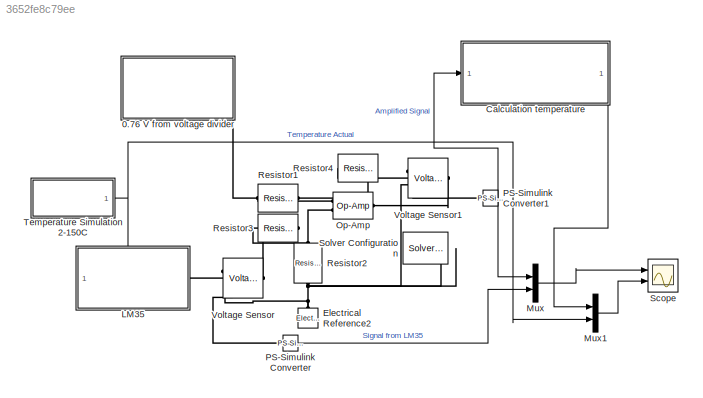
MODEL slx_3652fe8c79ee
KIND model
CONFIG AbsTol = auto
CONFIG EnableMultiTasking = off
CONFIG FixedStep = auto
CONFIG MaxStep = auto
CONFIG MinStep = auto
CONFIG RelTol = 1e-3
CONFIG SampleTimeConstraint = Unconstrained
CONFIG SolverName = VariableStepAuto
CONFIG StartTime = 0.0
CONFIG StopTime = 800
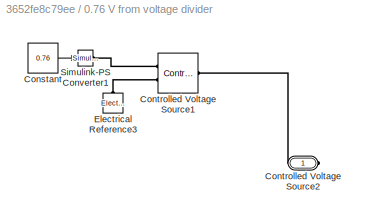
BLOCK [SubSystem] 0.76 V from voltage divider
  PortSchema = {"entries":[{"content":{"sides":[{"content":{"connectorIds":[]},"type":"ConnectorPlacement.EquallySpacedRectSide","uuid":"e1fed669-8d8a-41ed-8af4-1f1a704497c4"},{"content":{"connectorIds":[],"side":"RIGHT"},"type":"ConnectorPlacement.EquallySpacedRectSide","uuid":"b0ee4a10-4969-4a29-9254-be0943d7fc2a"},{"content":{"connectorIds":[],"side":"TOP"},"type":"ConnectorPlacement.EquallySpacedRectSide","u...<+525ch>
  Ports = [0, 0, 0, 0, 0, 0, 1]
  RequestExecContextInheritance = off
BLOCK [Constant] 0.76 V from voltage divider/Constant
  Value = 0.76
BLOCK [Reference] 0.76 V from voltage divider/Controlled Voltage Source1  REF=fl_lib/Electrical/Electrical Sources/Controlled Voltage
Source
  Ports = [0, 0, 0, 0, 0, 1, 2]
  SourceBlock = fl_lib/Electrical/Electrical Sources/Controlled Voltage\nSource
  SourceProductBaseCode = SS
  SourceType = Controlled Voltage\nSource
BLOCK [PMIOPort] 0.76 V from voltage divider/Controlled Voltage Source2
  Side = Right
BLOCK [Reference] 0.76 V from voltage divider/Electrical Reference3  REF=fl_lib/Electrical/Electrical Elements/Electrical Reference
  NameLocation = right
  Ports = [0, 0, 0, 0, 0, 1]
  SourceBlock = fl_lib/Electrical/Electrical Elements/Electrical Reference
  SourceProductBaseCode = SS
  SourceType = Electrical Reference
BLOCK [Reference] 0.76 V from voltage divider/Simulink-PS Converter1  REF=nesl_utility/Simulink-PS
Converter
  Ports = [1, 0, 0, 0, 0, 0, 1]
  SourceBlock = nesl_utility/Simulink-PS\nConverter
  SourceProductBaseCode = SS
  SourceType = Simulink-PS\nConverter
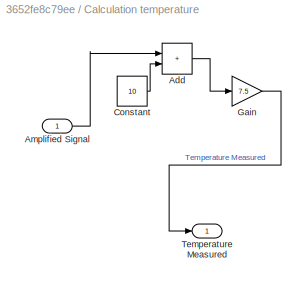
BLOCK [SubSystem] Calculation temperature
  Ports = [1, 1]
  RequestExecContextInheritance = off
BLOCK [Sum] Calculation temperature/Add
  IconShape = rectangular
  Ports = [2, 1]
BLOCK [Inport] Calculation temperature/Amplified Signal
BLOCK [Constant] Calculation temperature/Constant
  Value = 10
BLOCK [Gain] Calculation temperature/Gain
  Gain = 7.5
BLOCK [Outport] Calculation temperature/Temperature Measured
BLOCK [Reference] Electrical Reference2  REF=fl_lib/Electrical/Electrical Elements/Electrical Reference
  NameLocation = right
  Ports = [0, 0, 0, 0, 0, 1]
  SourceBlock = fl_lib/Electrical/Electrical Elements/Electrical Reference
  SourceProductBaseCode = SS
  SourceType = Electrical Reference
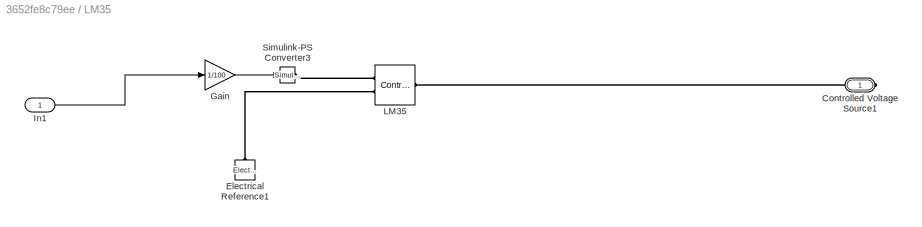
BLOCK [SubSystem] LM35
  PortSchema = {"entries":[{"content":{"sides":[{"content":{"connectorIds":[]},"type":"ConnectorPlacement.EquallySpacedRectSide","uuid":"3aaad436-2341-4e22-b71f-034393f9765e"},{"content":{"connectorIds":["RConn1"],"side":"RIGHT"},"type":"ConnectorPlacement.EquallySpacedRectSide","uuid":"800c2ee0-67ed-416a-922f-272a5a04867f"},{"content":{"connectorIds":["In1"],"side":"TOP"},"type":"ConnectorPlacement.EquallySpace...<+386ch>
  Ports = [1, 0, 0, 0, 0, 0, 1]
  RequestExecContextInheritance = off
BLOCK [PMIOPort] LM35/Controlled Voltage Source1
  Side = Right
BLOCK [Reference] LM35/Electrical Reference1  REF=fl_lib/Electrical/Electrical Elements/Electrical Reference
  NameLocation = right
  Ports = [0, 0, 0, 0, 0, 1]
  SourceBlock = fl_lib/Electrical/Electrical Elements/Electrical Reference
  SourceProductBaseCode = SS
  SourceType = Electrical Reference
BLOCK [Gain] LM35/Gain
  Gain = 1/100
BLOCK [Inport] LM35/In1
BLOCK [Reference] LM35/LM35  REF=fl_lib/Electrical/Electrical Sources/Controlled Voltage
Source
  Ports = [0, 0, 0, 0, 0, 1, 2]
  SourceBlock = fl_lib/Electrical/Electrical Sources/Controlled Voltage\nSource
  SourceProductBaseCode = SS
  SourceType = Controlled Voltage\nSource
BLOCK [Reference] LM35/Simulink-PS Converter3  REF=nesl_utility/Simulink-PS
Converter
  Ports = [1, 0, 0, 0, 0, 0, 1]
  SourceBlock = nesl_utility/Simulink-PS\nConverter
  SourceProductBaseCode = SS
  SourceType = Simulink-PS\nConverter
BLOCK [Mux] Mux
  DisplayOption = bar
  Inputs = 2
  Ports = [2, 1]
BLOCK [Mux] Mux1
  DisplayOption = bar
  Inputs = 2
  Ports = [2, 1]
BLOCK [Reference] Op-Amp  REF=fl_lib/Electrical/Electrical Elements/Op-Amp
  Ports = [0, 0, 0, 0, 0, 2, 1]
  SourceBlock = fl_lib/Electrical/Electrical Elements/Op-Amp
  SourceProductBaseCode = SS
  SourceType = Op-Amp
BLOCK [Reference] PS-Simulink Converter  REF=nesl_utility/PS-Simulink
Converter
  Ports = [0, 1, 0, 0, 0, 1]
  SourceBlock = nesl_utility/PS-Simulink\nConverter
  SourceProductBaseCode = SS
  SourceType = PS-Simulink\nConverter
BLOCK [Reference] PS-Simulink Converter1  REF=nesl_utility/PS-Simulink
Converter
  Ports = [0, 1, 0, 0, 0, 1]
  SourceBlock = nesl_utility/PS-Simulink\nConverter
  SourceProductBaseCode = SS
  SourceType = PS-Simulink\nConverter
BLOCK [Reference] Resistor1  REF=fl_lib/Electrical/Electrical Elements/Resistor
  NameLocation = top
  Ports = [0, 0, 0, 0, 0, 1, 1]
  SourceBlock = fl_lib/Electrical/Electrical Elements/Resistor
  SourceProductBaseCode = SS
  SourceType = Resistor
BLOCK [Reference] Resistor2  REF=fl_lib/Electrical/Electrical Elements/Resistor
  NameLocation = left
  Ports = [0, 0, 0, 0, 0, 1, 1]
  SourceBlock = fl_lib/Electrical/Electrical Elements/Resistor
  SourceProductBaseCode = SS
  SourceType = Resistor
BLOCK [Reference] Resistor3  REF=fl_lib/Electrical/Electrical Elements/Resistor
  NameLocation = top
  Ports = [0, 0, 0, 0, 0, 1, 1]
  SourceBlock = fl_lib/Electrical/Electrical Elements/Resistor
  SourceProductBaseCode = SS
  SourceType = Resistor
BLOCK [Reference] Resistor4  REF=fl_lib/Electrical/Electrical Elements/Resistor
  NameLocation = top
  Ports = [0, 0, 0, 0, 0, 1, 1]
  SourceBlock = fl_lib/Electrical/Electrical Elements/Resistor
  SourceProductBaseCode = SS
  SourceType = Resistor
BLOCK [Scope] Scope
  Floating = off
  NumInputPorts = 2
  Ports = [2]
  ScopeSpecificationString = Simulink.scopes.TimeScopeBlockCfg('CurrentConfiguration', extmgr.ConfigurationSet(extmgr.Configuration('Core','General UI',true),extmgr.Configuration('Core','Source UI',true),extmgr.Configuration('Sources','WiredSimulink',true),extmgr.Configuration('Visuals','Time Domain',true,'SerializedDisplays',{struct('MinYLimReal','-12.5787','MaxYLimReal','11.87495','YLabelReal','','MinYLimMag','0.00000','Max...<+2221ch>
BLOCK [Reference] Solver Configuration  REF=nesl_utility/Solver
Configuration
  Ports = [0, 0, 0, 0, 0, 0, 1]
  SourceBlock = nesl_utility/Solver\nConfiguration
  SourceProductBaseCode = SS
  SourceType = Solver\nConfiguration
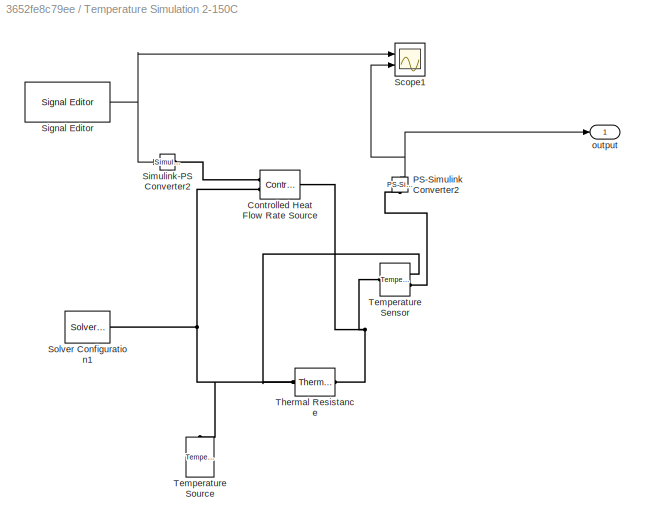
BLOCK [SubSystem] Temperature Simulation 2-150C
  Ports = [0, 1]
  RequestExecContextInheritance = off
BLOCK [Reference] Temperature Simulation 2-150C/Controlled Heat Flow Rate Source  REF=fl_lib/Thermal/Thermal Sources/Controlled Heat Flow
Rate Source
  Ports = [0, 0, 0, 0, 0, 1, 2]
  SourceBlock = fl_lib/Thermal/Thermal Sources/Controlled Heat Flow\nRate Source
  SourceProductBaseCode = SS
  SourceType = Controlled Heat Flow\nRate Source
BLOCK [Reference] Temperature Simulation 2-150C/PS-Simulink Converter2  REF=nesl_utility/PS-Simulink
Converter
  NameLocation = right
  Ports = [0, 1, 0, 0, 0, 1]
  SourceBlock = nesl_utility/PS-Simulink\nConverter
  SourceProductBaseCode = SS
  SourceType = PS-Simulink\nConverter
BLOCK [Scope] Temperature Simulation 2-150C/Scope1
  Floating = off
  NumInputPorts = 2
  Ports = [2]
  ScopeSpecificationString = Simulink.scopes.TimeScopeBlockCfg('CurrentConfiguration', extmgr.ConfigurationSet(extmgr.Configuration('Core','General UI',true),extmgr.Configuration('Core','Source UI',true),extmgr.Configuration('Sources','WiredSimulink',true,'DataLoggingVariableName','ScopeData1'),extmgr.Configuration('Visuals','Time Domain',true,'SerializedDisplays',{struct('MinYLimReal','-18.71453','MaxYLimReal','168.43073','Y...<+1506ch>
BLOCK [Reference] Temperature Simulation 2-150C/Signal Editor  REF=SignalEditorBlockLib/Signal Editor
  Ports = [0, 1]
  SourceBlock = SignalEditorBlockLib/Signal Editor
  SourceProductBaseCode = SL
  SourceType = SignalEditor
  UserDataPersistent = on
BLOCK [Reference] Temperature Simulation 2-150C/Simulink-PS Converter2  REF=nesl_utility/Simulink-PS
Converter
  Ports = [1, 0, 0, 0, 0, 0, 1]
  SourceBlock = nesl_utility/Simulink-PS\nConverter
  SourceProductBaseCode = SS
  SourceType = Simulink-PS\nConverter
BLOCK [Reference] Temperature Simulation 2-150C/Solver Configuration1  REF=nesl_utility/Solver
Configuration
  Ports = [0, 0, 0, 0, 0, 0, 1]
  SourceBlock = nesl_utility/Solver\nConfiguration
  SourceProductBaseCode = SS
  SourceType = Solver\nConfiguration
BLOCK [Reference] Temperature Simulation 2-150C/Temperature Sensor  REF=fl_lib/Thermal/Thermal Sensors/Temperature Sensor
  Ports = [0, 0, 0, 0, 0, 1, 2]
  SourceBlock = fl_lib/Thermal/Thermal Sensors/Temperature Sensor
  SourceProductBaseCode = SS
  SourceType = Temperature Sensor
BLOCK [Reference] Temperature Simulation 2-150C/Temperature Source  REF=fl_lib/Thermal/Thermal Sources/Temperature Source
  NameLocation = right
  Ports = [0, 0, 0, 0, 0, 1]
  SourceBlock = fl_lib/Thermal/Thermal Sources/Temperature Source
  SourceProductBaseCode = SS
  SourceType = Temperature Source
BLOCK [Reference] Temperature Simulation 2-150C/Thermal Resistance  REF=fl_lib/Thermal/Thermal Elements/Thermal Resistance
  Ports = [0, 0, 0, 0, 0, 1, 1]
  SourceBlock = fl_lib/Thermal/Thermal Elements/Thermal Resistance
  SourceProductBaseCode = SS
  SourceType = Thermal Resistance
BLOCK [Outport] Temperature Simulation 2-150C/output
BLOCK [Reference] Voltage Sensor  REF=fl_lib/Electrical/Electrical Sensors/Voltage Sensor
  NameLocation = top
  Ports = [0, 0, 0, 0, 0, 1, 2]
  SourceBlock = fl_lib/Electrical/Electrical Sensors/Voltage Sensor
  SourceProductBaseCode = SS
  SourceType = Voltage Sensor
BLOCK [Reference] Voltage Sensor1  REF=fl_lib/Electrical/Electrical Sensors/Voltage Sensor
  NameLocation = top
  Ports = [0, 0, 0, 0, 0, 1, 2]
  SourceBlock = fl_lib/Electrical/Electrical Sensors/Voltage Sensor
  SourceProductBaseCode = SS
  SourceType = Voltage Sensor
LINE 0.76 V from voltage divider/Constant:1 -> 0.76 V from voltage divider/Simulink-PS Converter1:1
LINE Calculation temperature/Add:1 -> Calculation temperature/Gain:1
LINE Calculation temperature/Amplified Signal:1 -> Calculation temperature/Add:1
LINE Calculation temperature/Constant:1 -> Calculation temperature/Add:2
LINE Calculation temperature/Gain:1 -> Calculation temperature/Temperature Measured:1
LINE Calculation temperature:1 -> Mux1:1
LINE LM35/Gain:1 -> LM35/Simulink-PS Converter3:1
LINE LM35/In1:1 -> LM35/Gain:1
LINE Mux1:1 -> Scope:2
LINE Mux:1 -> Scope:1
NET PS-Simulink Converter1:1 -> Calculation temperature:1, Mux:1
LINE PS-Simulink Converter:1 -> Mux:2
NET Temperature Simulation 2-150C/PS-Simulink Converter2:1 -> Temperature Simulation 2-150C/Scope1:2, Temperature Simulation 2-150C/output:1
NET Temperature Simulation 2-150C/Signal Editor:1 -> Temperature Simulation 2-150C/Scope1:1, Temperature Simulation 2-150C/Simulink-PS Converter2:1
NET Temperature Simulation 2-150C:1 -> LM35:1, Mux1:2
PLINE 0.76 V from voltage divider/Controlled Voltage Source1:LConn1 -- 0.76 V from voltage divider/Controlled Voltage Source2:RConn1
PLINE 0.76 V from voltage divider/Controlled Voltage Source1:RConn1 -- 0.76 V from voltage divider/Simulink-PS Converter1:RConn1
PLINE 0.76 V from voltage divider/Controlled Voltage Source1:RConn2 -- 0.76 V from voltage divider/Electrical Reference3:LConn1
PLINE 0.76 V from voltage divider:RConn1 -- Resistor1:RConn1
PNET net1: Electrical Reference2:LConn1 -- Resistor2:RConn1 -- Solver Configuration:RConn1 -- Voltage Sensor1:RConn2 -- Voltage Sensor:RConn2
PLINE LM35/Controlled Voltage Source1:RConn1 -- LM35/LM35:LConn1
PLINE LM35/Electrical Reference1:LConn1 -- LM35/LM35:RConn2
PLINE LM35/LM35:RConn1 -- LM35/Simulink-PS Converter3:RConn1
PNET net2: LM35:RConn1 -- Resistor3:RConn1 -- Voltage Sensor:LConn1
PNET net3: Op-Amp:LConn1 -- Resistor1:LConn1 -- Resistor4:RConn1
PNET net4: Op-Amp:LConn2 -- Resistor2:LConn1 -- Resistor3:LConn1
PNET net5: Op-Amp:RConn1 -- Resistor4:LConn1 -- Voltage Sensor1:LConn1
PLINE PS-Simulink Converter1:LConn1 -- Voltage Sensor1:RConn1
PLINE PS-Simulink Converter:LConn1 -- Voltage Sensor:RConn1
PNET net6: Temperature Simulation 2-150C/Controlled Heat Flow Rate Source:LConn1 -- Temperature Simulation 2-150C/Temperature Sensor:LConn1 -- Temperature Simulation 2-150C/Thermal Resistance:RConn1
PLINE Temperature Simulation 2-150C/Controlled Heat Flow Rate Source:RConn1 -- Temperature Simulation 2-150C/Simulink-PS Converter2:RConn1
PNET net7: Temperature Simulation 2-150C/Controlled Heat Flow Rate Source:RConn2 -- Temperature Simulation 2-150C/Solver Configuration1:RConn1 -- Temperature Simulation 2-150C/Temperature Sensor:RConn1 -- Temperature Simulation 2-150C/Temperature Source:LConn1 -- Temperature Simulation 2-150C/Thermal Resistance:LConn1
PLINE Temperature Simulation 2-150C/PS-Simulink Converter2:LConn1 -- Temperature Simulation 2-150C/Temperature Sensor:RConn2
note: NET lines group one-source signal fan-out (src -> all destinations, sorted); 1:1 wires keep LINE; PNET lines group multi-terminal physical nets as a canonical sorted terminal list (undirected conserving connections); 2-terminal nets keep the pairwise PLINE form
